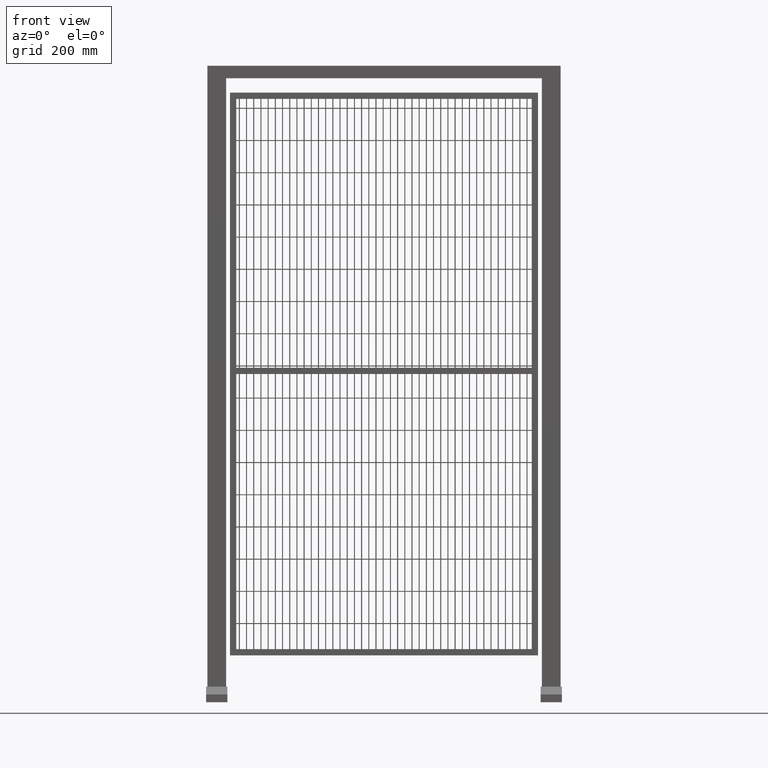
[diagram: clean part render]
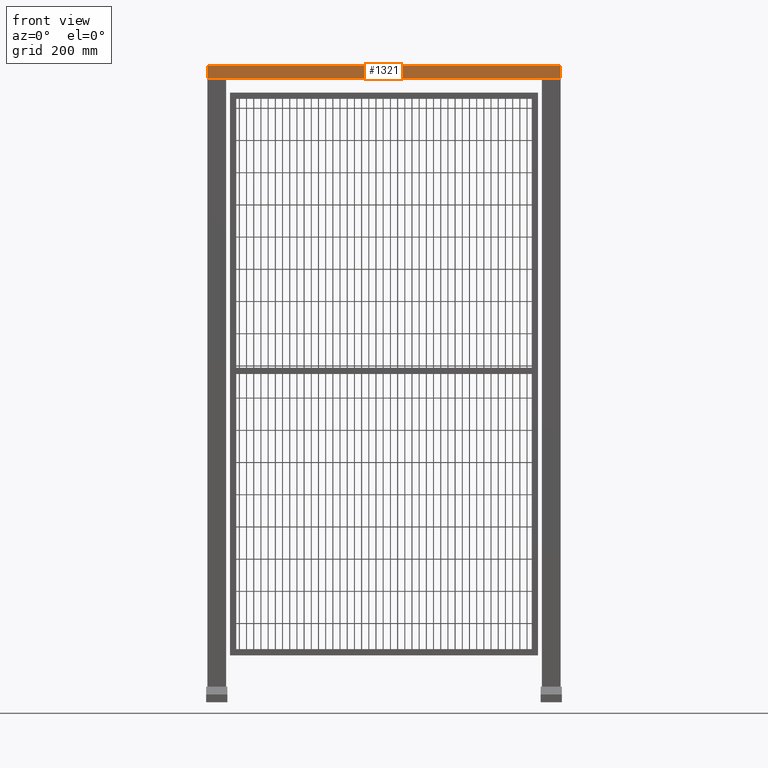
[diagram: same view with one face highlighted and labeled with its STEP entity id]
A machine part, front view. The second image highlights one B-rep face of the part: STEP entity #1321.
In plain terms, the highlighted planar face has unit normal (0, -1, 0).
Its self-contained STEP definition (entity closure, byte-faithful):
#158=LINE('',#4547,#252);
#162=LINE('',#4555,#256);
#165=LINE('',#4561,#259);
#167=LINE('',#4564,#261);
#252=VECTOR('',#3911,1.);
#256=VECTOR('',#3917,1.);
#259=VECTOR('',#3922,1.);
#261=VECTOR('',#3926,1.);
#956=PLANE('',#3143);
#1105=FACE_OUTER_BOUND('',#1816,.T.);
#1321=ADVANCED_FACE('',(#1105),#956,.T.);
#1816=EDGE_LOOP('',(#2254,#2255,#2256,#2257));
#2254=ORIENTED_EDGE('',*,*,#2662,.T.);
#2255=ORIENTED_EDGE('',*,*,#2666,.T.);
#2256=ORIENTED_EDGE('',*,*,#2669,.T.);
#2257=ORIENTED_EDGE('',*,*,#2671,.T.);
#2444=VERTEX_POINT('',#4546);
#2445=VERTEX_POINT('',#4548);
#2447=VERTEX_POINT('',#4554);
#2449=VERTEX_POINT('',#4560);
#2662=EDGE_CURVE('',#2445,#2444,#158,.T.);
#2666=EDGE_CURVE('',#2444,#2447,#162,.T.);
#2669=EDGE_CURVE('',#2447,#2449,#165,.T.);
#2671=EDGE_CURVE('',#2449,#2445,#167,.T.);
#3143=AXIS2_PLACEMENT_3D('',#4566,#3929,#3930);
#3911=DIRECTION('',(-1.,0.,0.));
#3917=DIRECTION('',(0.,0.,-1.));
#3922=DIRECTION('',(1.,0.,1.83697019872103E-16));
#3926=DIRECTION('',(0.,0.,1.));
#3929=DIRECTION('',(0.,-1.,0.));
#3930=DIRECTION('',(0.,0.,-1.));
#4546=CARTESIAN_POINT('',(-564.999999999993,-30.,40.));
#4547=CARTESIAN_POINT('',(564.999999999993,-30.,40.));
#4548=CARTESIAN_POINT('',(564.999999999993,-30.,40.));
#4554=CARTESIAN_POINT('',(-564.999999999993,-30.,0.));
#4555=CARTESIAN_POINT('',(-564.999999999993,-30.,40.));
#4560=CARTESIAN_POINT('',(564.999999999993,-30.,2.07577632455474E-13));
#4561=CARTESIAN_POINT('',(-564.999999999993,-30.,0.));
#4564=CARTESIAN_POINT('',(564.999999999993,-30.,0.));
#4566=CARTESIAN_POINT('',(0.,-30.,0.));